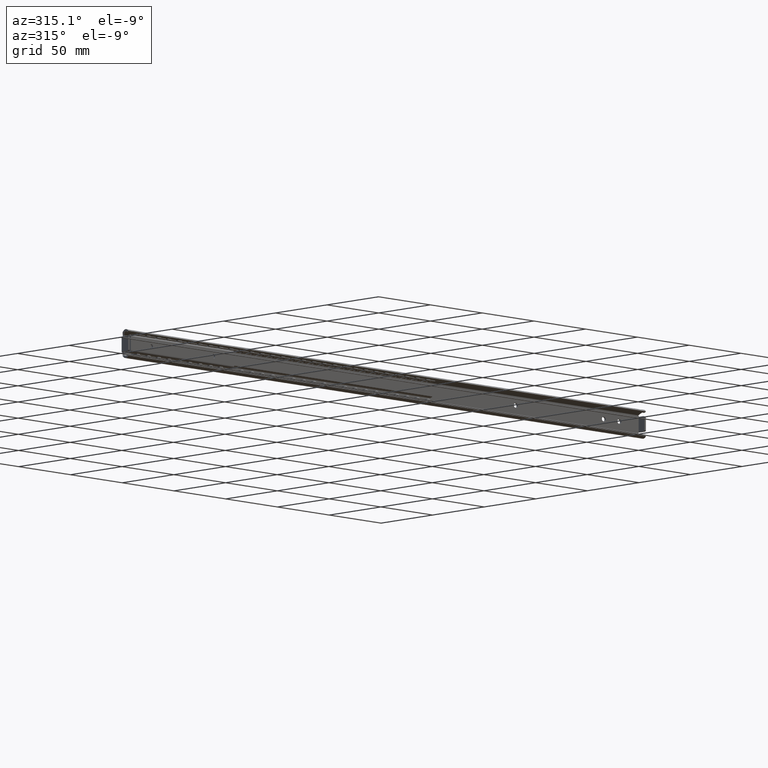
[diagram: clean part render]
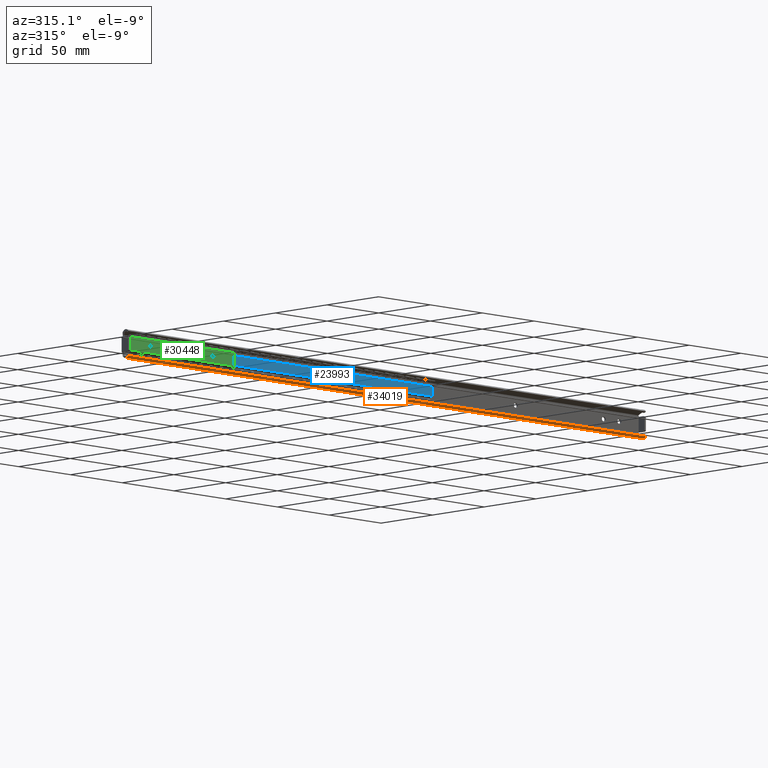
[diagram: same view with three faces highlighted in distinct colors, each labeled with its STEP entity id]
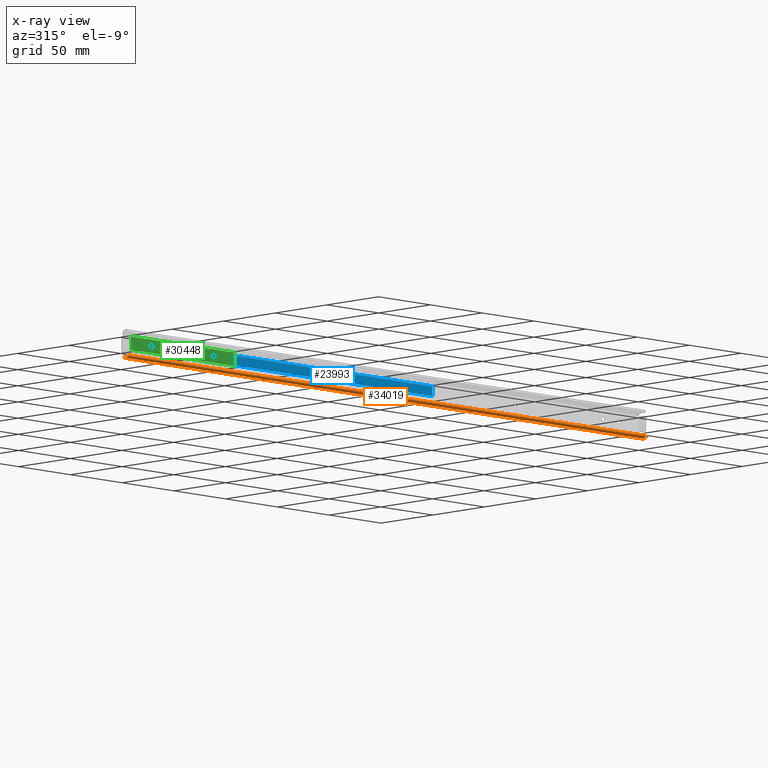
[diagram: x-ray of the same camera — body ghosted, the three highlighted faces saturated]
A machine part, auxiliary view with three faces highlighted in distinct colors.
The next image is the same camera in x-ray (body ghosted, the three faces saturated) — at least one of them is partly hidden behind the body in this view.
Their STEP definitions:

[orange] entity #34019 — the highlighted face is a freeform B-spline surface patch.
#32516=CARTESIAN_POINT('',(499.978470043576980,-7.078071239486540,-8.522037986979019));
#32517=VERTEX_POINT('',#32516);
#32531=CARTESIAN_POINT('',(500.0,-6.945557355833470,-8.728427000000000));
#32532=VERTEX_POINT('',#32531);
#32533=CARTESIAN_POINT('',(499.978470043576980,-7.078071239486540,-8.522037986979019));
#32534=CARTESIAN_POINT('',(499.993393596904920,-7.036644278149490,-8.592789209196411));
#32535=CARTESIAN_POINT('',(500.0,-6.992462636428367,-8.661577096719608));
#32536=CARTESIAN_POINT('',(500.0,-6.945557355833489,-8.728427000000016));
#32537=QUASI_UNIFORM_CURVE('',3,(#32533,#32534,#32535,#32536),.UNSPECIFIED.,.F.,.U.);
#32538=EDGE_CURVE('',#32517,#32532,#32537,.T.);
#33541=CARTESIAN_POINT('',(0.0,-6.945557355833470,-8.728427000000000));
#33542=VERTEX_POINT('',#33541);
#33548=CARTESIAN_POINT('',(0.021529956423461,-7.078071239486540,-8.522037986979019));
#33549=VERTEX_POINT('',#33548);
#33550=CARTESIAN_POINT('',(-7.868711E-017,-6.945557355833491,-8.728427000000012));
#33551=CARTESIAN_POINT('',(-8.966116E-016,-6.992818676011345,-8.661069665330553));
#33552=CARTESIAN_POINT('',(0.006725192559360,-7.036974030578380,-8.592226040027828));
#33553=CARTESIAN_POINT('',(0.021529956423461,-7.078071239486540,-8.522037986979019));
#33554=QUASI_UNIFORM_CURVE('',3,(#33550,#33551,#33552,#33553),.UNSPECIFIED.,.F.,.U.);
#33555=EDGE_CURVE('',#33542,#33549,#33554,.T.);
#33751=CARTESIAN_POINT('',(0.0,-2.466979999999921,-9.201561000000101));
#33752=VERTEX_POINT('',#33751);
#33758=CARTESIAN_POINT('',(0.0,-6.945557355833489,-8.728427000000014));
#33759=CARTESIAN_POINT('',(0.0,-6.165119425343511,-9.840715414181579));
#33760=CARTESIAN_POINT('',(0.0,-4.813864144514684,-9.983467106648719));
#33761=CARTESIAN_POINT('',(0.0,-3.462608863685861,-10.126218799115856));
#33762=CARTESIAN_POINT('',(0.0,-2.466979999999921,-9.201561000000101));
#33770=(BOUNDED_CURVE()B_SPLINE_CURVE(2,(#33758,#33759,#33760,#33761,#33762),.UNSPECIFIED.,.F.,.U.)B_SPLINE_CURVE_WITH_KNOTS((3,2,3),(0.0,0.500000000000000,1.0),.UNSPECIFIED.)CURVE()GEOMETRIC_REPRESENTATION_ITEM()RATIONAL_B_SPLINE_CURVE((1.0,0.910272306830949,1.0,0.910272306830949,1.0))REPRESENTATION_ITEM(''));
#33771=EDGE_CURVE('',#33542,#33752,#33770,.T.);
#33857=CARTESIAN_POINT('',(500.0,-2.466979999999921,-9.201561000000101));
#33858=VERTEX_POINT('',#33857);
#33865=CARTESIAN_POINT('',(500.0,-6.945557355833489,-8.728427000000014));
#33866=CARTESIAN_POINT('',(500.000000000000110,-6.165119425343511,-9.840715414181579));
#33867=CARTESIAN_POINT('',(500.0,-4.813864144514684,-9.983467106648719));
#33868=CARTESIAN_POINT('',(500.000000000000110,-3.462608863685861,-10.126218799115856));
#33869=CARTESIAN_POINT('',(500.0,-2.466979999999921,-9.201561000000101));
#33877=(BOUNDED_CURVE()B_SPLINE_CURVE(2,(#33865,#33866,#33867,#33868,#33869),.UNSPECIFIED.,.F.,.U.)B_SPLINE_CURVE_WITH_KNOTS((3,2,3),(0.0,0.500000000000000,1.0),.UNSPECIFIED.)CURVE()GEOMETRIC_REPRESENTATION_ITEM()RATIONAL_B_SPLINE_CURVE((1.0,0.910272306830949,1.0,0.910272306830949,1.0))REPRESENTATION_ITEM(''));
#33878=EDGE_CURVE('',#32532,#33858,#33877,.T.);
#33985=CARTESIAN_POINT('',(499.978470043576980,-7.078071239486540,-8.522037986979019));
#33986=CARTESIAN_POINT('',(0.021529956423461,-7.078071239486540,-8.522037986979019));
#33987=QUASI_UNIFORM_CURVE('',1,(#33985,#33986),.UNSPECIFIED.,.F.,.U.);
#33988=EDGE_CURVE('',#32517,#33549,#33987,.T.);
#33993=CARTESIAN_POINT('',(512.500000000000110,-7.128361483693265,-8.432666244155245));
#33994=CARTESIAN_POINT('',(-12.812500000000000,-7.128361483693265,-8.432666244155245));
#33995=CARTESIAN_POINT('',(512.500000000000230,-5.139968390697588,-12.112669090005607));
#33996=CARTESIAN_POINT('',(-12.812500000000000,-5.139968390697588,-12.112669090005607));
#33997=CARTESIAN_POINT('',(512.500000000000110,-2.304003409688356,-9.038025913272902));
#33998=CARTESIAN_POINT('',(-12.812500000000004,-2.304003409688356,-9.038025913272902));
#34006=(BOUNDED_SURFACE()B_SPLINE_SURFACE(1,2,((#33993,#33995,#33997),(#33994,#33996,#33998)),.UNSPECIFIED.,.F.,.F.,.U.)B_SPLINE_SURFACE_WITH_KNOTS((2,2),(3,3),(0.0,525.312500000000110),(0.0,6.149971916769985),.UNSPECIFIED.)GEOMETRIC_REPRESENTATION_ITEM()RATIONAL_B_SPLINE_SURFACE(((1.0,0.581021895955603,0.999362604717430),(1.0,0.581021895955603,0.999362604717430)))REPRESENTATION_ITEM('')SURFACE());
#34007=ORIENTED_EDGE('',*,*,#32538,.F.);
#34008=ORIENTED_EDGE('',*,*,#33988,.T.);
#34009=ORIENTED_EDGE('',*,*,#33555,.F.);
#34010=ORIENTED_EDGE('',*,*,#33771,.T.);
#34011=CARTESIAN_POINT('',(500.0,-2.466979999999921,-9.201561000000101));
#34012=CARTESIAN_POINT('',(0.0,-2.466979999999921,-9.201561000000101));
#34013=QUASI_UNIFORM_CURVE('',1,(#34011,#34012),.UNSPECIFIED.,.F.,.U.);
#34014=EDGE_CURVE('',#33858,#33752,#34013,.T.);
#34015=ORIENTED_EDGE('',*,*,#34014,.F.);
#34016=ORIENTED_EDGE('',*,*,#33878,.F.);
#34017=EDGE_LOOP('',(#34007,#34008,#34009,#34010,#34015,#34016));
#34018=FACE_OUTER_BOUND('',#34017,.T.);
#34019=ADVANCED_FACE('',(#34018),#34006,.T.);

[blue] entity #23993 — the highlighted face is a freeform B-spline surface patch.
#23487=CARTESIAN_POINT('',(8.200000000000001,-4.500000000000000,-3.373923690811400));
#23488=VERTEX_POINT('',#23487);
#23502=CARTESIAN_POINT('',(8.200000000000001,-4.500000000000000,3.373923690811400));
#23503=VERTEX_POINT('',#23502);
#23504=CARTESIAN_POINT('',(8.200000000000001,-4.500000000000000,-3.373923690811400));
#23505=CARTESIAN_POINT('',(8.200000000000001,-4.500000000000000,3.373923690811400));
#23506=QUASI_UNIFORM_CURVE('',1,(#23504,#23505),.UNSPECIFIED.,.F.,.U.);
#23507=EDGE_CURVE('',#23488,#23503,#23506,.T.);
#23567=CARTESIAN_POINT('',(296.200000000000100,-4.500000000000000,3.373923690811400));
#23568=VERTEX_POINT('',#23567);
#23582=CARTESIAN_POINT('',(296.200000000000100,-4.500000000000000,-3.373923690811400));
#23583=VERTEX_POINT('',#23582);
#23584=CARTESIAN_POINT('',(296.200000000000100,-4.500000000000000,-3.373923690811400));
#23585=CARTESIAN_POINT('',(296.200000000000100,-4.500000000000000,3.373923690811400));
#23586=QUASI_UNIFORM_CURVE('',1,(#23584,#23585),.UNSPECIFIED.,.F.,.U.);
#23587=EDGE_CURVE('',#23583,#23568,#23586,.T.);
#23968=CARTESIAN_POINT('',(296.200000000000100,-4.500000000000000,3.373923690811400));
#23969=CARTESIAN_POINT('',(8.200000000000001,-4.500000000000000,3.373923690811400));
#23970=QUASI_UNIFORM_CURVE('',1,(#23968,#23969),.UNSPECIFIED.,.F.,.U.);
#23971=EDGE_CURVE('',#23568,#23503,#23970,.T.);
#23978=CARTESIAN_POINT('',(-6.185599441800145,-4.500000000000000,3.710978781132748));
#23979=CARTESIAN_POINT('',(-6.185599441800145,-4.500000000000000,-3.710978841463204));
#23980=CARTESIAN_POINT('',(310.585607166562110,-4.500000000000000,3.710978781132748));
#23981=CARTESIAN_POINT('',(310.585607166562110,-4.500000000000000,-3.710978841463204));
#23982=B_SPLINE_SURFACE_WITH_KNOTS('',1,1,((#23978,#23980),(#23979,#23981)),.UNSPECIFIED.,.F.,.F.,.U.,(2,2),(2,2),(0.0,7.421957622595952),(0.0,316.771206608362320),.UNSPECIFIED.);
#23983=ORIENTED_EDGE('',*,*,#23507,.F.);
#23984=CARTESIAN_POINT('',(296.200000000000100,-4.500000000000000,-3.373923690811400));
#23985=CARTESIAN_POINT('',(8.200000000000001,-4.500000000000000,-3.373923690811400));
#23986=QUASI_UNIFORM_CURVE('',1,(#23984,#23985),.UNSPECIFIED.,.F.,.U.);
#23987=EDGE_CURVE('',#23583,#23488,#23986,.T.);
#23988=ORIENTED_EDGE('',*,*,#23987,.F.);
#23989=ORIENTED_EDGE('',*,*,#23587,.T.);
#23990=ORIENTED_EDGE('',*,*,#23971,.T.);
#23991=EDGE_LOOP('',(#23983,#23988,#23989,#23990));
#23992=FACE_OUTER_BOUND('',#23991,.T.);
#23993=ADVANCED_FACE('',(#23992),#23982,.T.);

[green] entity #30448 — the highlighted face is a freeform B-spline surface patch.
#29581=CARTESIAN_POINT('',(79.910485712514259,-8.0,0.177051369313544));
#29582=VERTEX_POINT('',#29581);
#29588=CARTESIAN_POINT('',(81.400000000000006,-8.0,-1.500000000000000));
#29589=VERTEX_POINT('',#29588);
#29590=CARTESIAN_POINT('',(79.910485712514259,-8.0,0.177051369313544));
#29591=CARTESIAN_POINT('',(79.900000000000006,-8.0,0.088836196989466));
#29592=CARTESIAN_POINT('',(79.900000000000006,-8.0,0.0));
#29593=CARTESIAN_POINT('',(79.900000000000006,-8.0,-1.500000000000000));
#29594=CARTESIAN_POINT('',(81.400000000000006,-8.0,-1.500000000000000));
#29602=(BOUNDED_CURVE()B_SPLINE_CURVE(2,(#29590,#29591,#29592,#29593,#29594),.UNSPECIFIED.,.F.,.U.)B_SPLINE_CURVE_WITH_KNOTS((3,2,3),(0.229562469583413,0.250000000000000,0.500000000000000),.UNSPECIFIED.)CURVE()GEOMETRIC_REPRESENTATION_ITEM()RATIONAL_B_SPLINE_CURVE((0.956026746480553,0.976055943726752,1.0,0.707106781186548,1.0))REPRESENTATION_ITEM(''));
#29603=EDGE_CURVE('',#29582,#29589,#29602,.T.);
#29605=CARTESIAN_POINT('',(82.897202197279412,-8.0,-0.091572815080301));
#29606=VERTEX_POINT('',#29605);
#29607=CARTESIAN_POINT('',(81.400000000000006,-8.0,-1.500000000000000));
#29608=CARTESIAN_POINT('',(82.811059089447042,-8.0,-1.500000000000000));
#29609=CARTESIAN_POINT('',(82.897202197279412,-8.0,-0.091572815080301));
#29617=(BOUNDED_CURVE()B_SPLINE_CURVE(2,(#29607,#29608,#29609),.UNSPECIFIED.,.F.,.U.)B_SPLINE_CURVE_WITH_KNOTS((3,3),(0.500000000000000,0.739332960910179),.UNSPECIFIED.)CURVE()GEOMETRIC_REPRESENTATION_ITEM()RATIONAL_B_SPLINE_CURVE((1.0,0.719603994843454,0.976072038818924))REPRESENTATION_ITEM(''));
#29618=EDGE_CURVE('',#29589,#29606,#29617,.T.);
#29692=CARTESIAN_POINT('',(81.400000000000006,-8.0,1.500000000000000));
#29693=VERTEX_POINT('',#29692);
#29694=CARTESIAN_POINT('',(82.897202197279412,-8.0,-0.091572815080301));
#29695=CARTESIAN_POINT('',(82.900000000000006,-8.0,-0.045829150742100));
#29696=CARTESIAN_POINT('',(82.900000000000006,-8.0,0.0));
#29697=CARTESIAN_POINT('',(82.900000000000006,-8.0,1.500000000000000));
#29698=CARTESIAN_POINT('',(81.400000000000006,-8.0,1.500000000000000));
#29706=(BOUNDED_CURVE()B_SPLINE_CURVE(2,(#29694,#29695,#29696,#29697,#29698),.UNSPECIFIED.,.F.,.U.)B_SPLINE_CURVE_WITH_KNOTS((3,2,3),(0.739332960910180,0.750000000000000,1.0),.UNSPECIFIED.)CURVE()GEOMETRIC_REPRESENTATION_ITEM()RATIONAL_B_SPLINE_CURVE((0.976072038818926,0.987502786343095,1.0,0.707106781186548,1.0))REPRESENTATION_ITEM(''));
#29707=EDGE_CURVE('',#29606,#29693,#29706,.T.);
#29709=CARTESIAN_POINT('',(81.400000000000006,-8.0,1.500000000000000));
#29710=CARTESIAN_POINT('',(80.067738242289153,-8.0,1.500000000000000));
#29711=CARTESIAN_POINT('',(79.910485712514259,-8.000000000000002,0.177051369313544));
#29719=(BOUNDED_CURVE()B_SPLINE_CURVE(2,(#29709,#29710,#29711),.UNSPECIFIED.,.F.,.U.)B_SPLINE_CURVE_WITH_KNOTS((3,3),(0.0,0.229562469583413),.UNSPECIFIED.)CURVE()GEOMETRIC_REPRESENTATION_ITEM()RATIONAL_B_SPLINE_CURVE((1.0,0.731050837459795,0.956026746480552))REPRESENTATION_ITEM(''));
#29720=EDGE_CURVE('',#29693,#29582,#29719,.T.);
#29767=CARTESIAN_POINT('',(19.910485712514241,-8.0,0.177051369313544));
#29768=VERTEX_POINT('',#29767);
#29774=CARTESIAN_POINT('',(21.399999999999999,-8.0,-1.500000000000000));
#29775=VERTEX_POINT('',#29774);
#29776=CARTESIAN_POINT('',(19.910485712514244,-8.0,0.177051369313544));
#29777=CARTESIAN_POINT('',(19.899999999999999,-8.0,0.088836196989465));
#29778=CARTESIAN_POINT('',(19.899999999999999,-8.0,0.0));
#29779=CARTESIAN_POINT('',(19.900000000000006,-8.0,-1.500000000000000));
#29780=CARTESIAN_POINT('',(21.399999999999999,-8.0,-1.500000000000000));
#29788=(BOUNDED_CURVE()B_SPLINE_CURVE(2,(#29776,#29777,#29778,#29779,#29780),.UNSPECIFIED.,.F.,.U.)B_SPLINE_CURVE_WITH_KNOTS((3,2,3),(0.229562469583413,0.250000000000000,0.500000000000000),.UNSPECIFIED.)CURVE()GEOMETRIC_REPRESENTATION_ITEM()RATIONAL_B_SPLINE_CURVE((0.956026746480553,0.976055943726752,1.0,0.707106781186548,1.0))REPRESENTATION_ITEM(''));
#29789=EDGE_CURVE('',#29768,#29775,#29788,.T.);
#29791=CARTESIAN_POINT('',(22.897202197279402,-8.0,-0.091572815080301));
#29792=VERTEX_POINT('',#29791);
#29793=CARTESIAN_POINT('',(21.399999999999999,-8.0,-1.500000000000000));
#29794=CARTESIAN_POINT('',(22.811059089447031,-8.0,-1.500000000000000));
#29795=CARTESIAN_POINT('',(22.897202197279402,-8.0,-0.091572815080301));
#29803=(BOUNDED_CURVE()B_SPLINE_CURVE(2,(#29793,#29794,#29795),.UNSPECIFIED.,.F.,.U.)B_SPLINE_CURVE_WITH_KNOTS((3,3),(0.500000000000000,0.739332960910179),.UNSPECIFIED.)CURVE()GEOMETRIC_REPRESENTATION_ITEM()RATIONAL_B_SPLINE_CURVE((1.0,0.719603994843454,0.976072038818924))REPRESENTATION_ITEM(''));
#29804=EDGE_CURVE('',#29775,#29792,#29803,.T.);
#29878=CARTESIAN_POINT('',(21.399999999999999,-8.0,1.500000000000000));
#29879=VERTEX_POINT('',#29878);
#29880=CARTESIAN_POINT('',(22.897202197279402,-8.0,-0.091572815080301));
#29881=CARTESIAN_POINT('',(22.899999999999999,-8.0,-0.045829150742100));
#29882=CARTESIAN_POINT('',(22.899999999999999,-8.0,0.0));
#29883=CARTESIAN_POINT('',(22.899999999999999,-8.0,1.500000000000000));
#29884=CARTESIAN_POINT('',(21.399999999999999,-8.0,1.500000000000000));
#29892=(BOUNDED_CURVE()B_SPLINE_CURVE(2,(#29880,#29881,#29882,#29883,#29884),.UNSPECIFIED.,.F.,.U.)B_SPLINE_CURVE_WITH_KNOTS((3,2,3),(0.739332960910180,0.750000000000000,1.0),.UNSPECIFIED.)CURVE()GEOMETRIC_REPRESENTATION_ITEM()RATIONAL_B_SPLINE_CURVE((0.976072038818926,0.987502786343095,1.0,0.707106781186548,1.0))REPRESENTATION_ITEM(''));
#29893=EDGE_CURVE('',#29792,#29879,#29892,.T.);
#29895=CARTESIAN_POINT('',(21.399999999999999,-8.0,1.500000000000000));
#29896=CARTESIAN_POINT('',(20.067738242289153,-8.0,1.500000000000001));
#29897=CARTESIAN_POINT('',(19.910485712514241,-8.0,0.177051369313544));
#29905=(BOUNDED_CURVE()B_SPLINE_CURVE(2,(#29895,#29896,#29897),.UNSPECIFIED.,.F.,.U.)B_SPLINE_CURVE_WITH_KNOTS((3,3),(0.0,0.229562469583414),.UNSPECIFIED.)CURVE()GEOMETRIC_REPRESENTATION_ITEM()RATIONAL_B_SPLINE_CURVE((1.0,0.731050837459795,0.956026746480553))REPRESENTATION_ITEM(''));
#29906=EDGE_CURVE('',#29879,#29768,#29905,.T.);
#30012=CARTESIAN_POINT('',(1.400000000000068,-8.0,-4.641040000000000));
#30013=VERTEX_POINT('',#30012);
#30029=CARTESIAN_POINT('',(1.400000000000068,-8.0,4.641039999999910));
#30030=VERTEX_POINT('',#30029);
#30031=CARTESIAN_POINT('',(1.400000000000068,-8.0,4.641039999999910));
#30032=CARTESIAN_POINT('',(1.400000000000068,-8.0,-4.641040000000000));
#30033=QUASI_UNIFORM_CURVE('',1,(#30031,#30032),.UNSPECIFIED.,.F.,.U.);
#30034=EDGE_CURVE('',#30030,#30013,#30033,.T.);
#30120=CARTESIAN_POINT('',(101.400000000000010,-8.0,4.641039999999910));
#30121=VERTEX_POINT('',#30120);
#30137=CARTESIAN_POINT('',(101.400000000000010,-8.0,-4.641040000000000));
#30138=VERTEX_POINT('',#30137);
#30139=CARTESIAN_POINT('',(101.400000000000010,-8.0,4.641039999999910));
#30140=CARTESIAN_POINT('',(101.400000000000010,-8.0,-4.641040000000000));
#30141=QUASI_UNIFORM_CURVE('',1,(#30139,#30140),.UNSPECIFIED.,.F.,.U.);
#30142=EDGE_CURVE('',#30121,#30138,#30141,.T.);
#30413=CARTESIAN_POINT('',(101.400000000000010,-8.0,-4.641040000000000));
#30414=CARTESIAN_POINT('',(1.400000000000068,-8.0,-4.641040000000000));
#30415=QUASI_UNIFORM_CURVE('',1,(#30413,#30414),.UNSPECIFIED.,.F.,.U.);
#30416=EDGE_CURVE('',#30138,#30013,#30415,.T.);
#30421=CARTESIAN_POINT('',(-3.594999806180524,-8.0,-5.104679757713888));
#30422=CARTESIAN_POINT('',(-3.594999806180524,-8.0,5.104679425760749));
#30423=CARTESIAN_POINT('',(106.395002488389590,-8.0,-5.104679757713888));
#30424=CARTESIAN_POINT('',(106.395002488389590,-8.0,5.104679425760749));
#30425=B_SPLINE_SURFACE_WITH_KNOTS('',1,1,((#30421,#30423),(#30422,#30424)),.UNSPECIFIED.,.F.,.F.,.U.,(2,2),(2,2),(0.0,10.209359183474641),(0.0,109.990002294570200),.UNSPECIFIED.);
#30426=ORIENTED_EDGE('',*,*,#30034,.T.);
#30427=ORIENTED_EDGE('',*,*,#30416,.F.);
#30428=ORIENTED_EDGE('',*,*,#30142,.F.);
#30429=CARTESIAN_POINT('',(101.400000000000010,-8.0,4.641039999999910));
#30430=CARTESIAN_POINT('',(1.400000000000068,-8.0,4.641039999999910));
#30431=QUASI_UNIFORM_CURVE('',1,(#30429,#30430),.UNSPECIFIED.,.F.,.U.);
#30432=EDGE_CURVE('',#30121,#30030,#30431,.T.);
#30433=ORIENTED_EDGE('',*,*,#30432,.T.);
#30434=EDGE_LOOP('',(#30426,#30427,#30428,#30433));
#30435=FACE_OUTER_BOUND('',#30434,.T.);
#30436=ORIENTED_EDGE('',*,*,#29804,.F.);
#30437=ORIENTED_EDGE('',*,*,#29789,.F.);
#30438=ORIENTED_EDGE('',*,*,#29906,.F.);
#30439=ORIENTED_EDGE('',*,*,#29893,.F.);
#30440=EDGE_LOOP('',(#30436,#30437,#30438,#30439));
#30441=FACE_BOUND('',#30440,.T.);
#30442=ORIENTED_EDGE('',*,*,#29618,.F.);
#30443=ORIENTED_EDGE('',*,*,#29603,.F.);
#30444=ORIENTED_EDGE('',*,*,#29720,.F.);
#30445=ORIENTED_EDGE('',*,*,#29707,.F.);
#30446=EDGE_LOOP('',(#30442,#30443,#30444,#30445));
#30447=FACE_BOUND('',#30446,.T.);
#30448=ADVANCED_FACE('',(#30435,#30441,#30447),#30425,.F.);